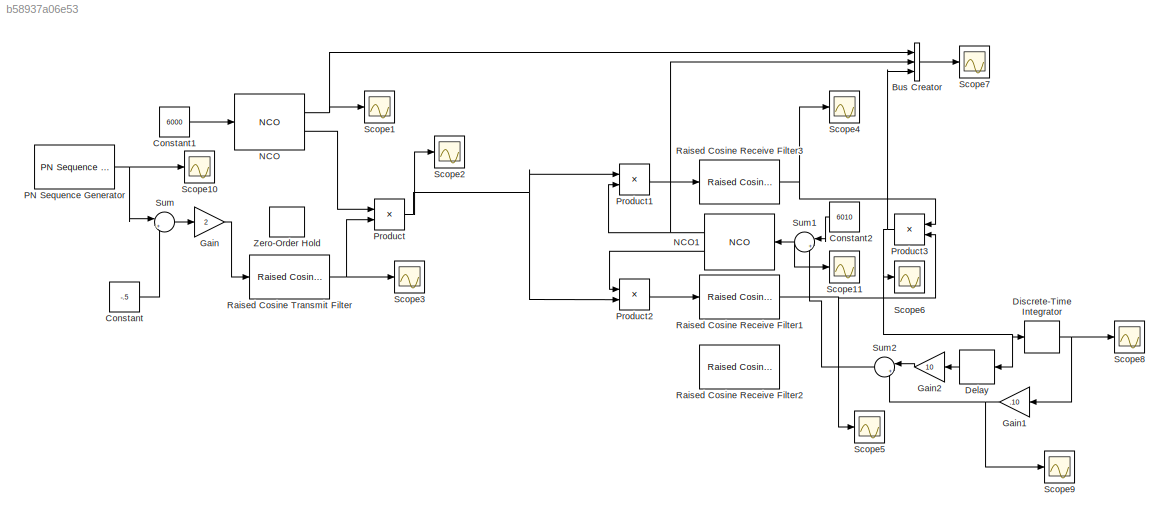
MODEL slx_b58937a06e53
KIND model
BLOCK [BusCreator] Bus Creator
  DisplayOption = bar
  Inputs = 3
  Ports = [3, 1]
BLOCK [Constant] Constant
  Value = -.5
BLOCK [Constant] Constant1
  OutDataTypeStr = int32
  Value = 6000
BLOCK [Constant] Constant2
  OutDataTypeStr = int32
  Value = 6010
BLOCK [Delay] Delay
  DelayLength = 1
  InputPortMap = u0
  Ports = [1, 1]
BLOCK [DiscreteIntegrator] Discrete-Time Integrator
  ICPrevOutput = DiscIntNeverNeededParam
  ICPrevScaledInput = DiscIntNeverNeededParam
  OutDataTypeStr = double
  Ports = [1, 1]
  SampleTime = -1
  gainval = 1
BLOCK [Gain] Gain
  Gain = 2
  OutDataTypeStr = Inherit: Inherit via internal rule
  ParamDataTypeStr = Inherit: Inherit via internal rule
  SaturateOnIntegerOverflow = off
BLOCK [Gain] Gain1
  Gain = .10
  OutDataTypeStr = int32
  ParamDataTypeStr = Inherit: Inherit via internal rule
  SaturateOnIntegerOverflow = off
BLOCK [Gain] Gain2
  Gain = 10
  OutDataTypeStr = int32
  ParamDataTypeStr = Inherit: Inherit via internal rule
  SaturateOnIntegerOverflow = off
BLOCK [Reference] NCO  REF=dspsigops/NCO
  AccInc = 100
  AccIncSrc = Input port
  AccumWL = 16
  CompMethod = Table lookup (no interpolation)
  DataType = double
  DitherWL = 4
  Formula = Sine and cosine
  HasDither = on
  HasOutputPhaseError = off
  HasPhaseQuantizer = on
  OutputFL = 14
  OutputWL = 16
  PNgeneratorLength = 19
  PhaseOffset = 0
  PhaseOffsetSrc = Specify via dialog
  Ports = [1, 2]
  SampleTime = 1
  SamplesPerFrame = 1
  SourceBlock = dspsigops/NCO
  SourceType = NCO
  TableDepth = 12
BLOCK [Reference] NCO1  REF=dspsigops/NCO
  AccInc = 100
  AccIncSrc = Input port
  AccumWL = 16
  CompMethod = Table lookup (no interpolation)
  DataType = double
  DitherWL = 4
  Formula = Sine and cosine
  HasDither = on
  HasOutputPhaseError = off
  HasPhaseQuantizer = on
  OutputFL = 14
  OutputWL = 16
  PNgeneratorLength = 19
  PhaseOffset = 0
  PhaseOffsetSrc = Specify via dialog
  Ports = [1, 2]
  SampleTime = 1
  SamplesPerFrame = 1
  SourceBlock = dspsigops/NCO
  SourceType = NCO
  TableDepth = 12
BLOCK [Reference] PN Sequence Generator  REF=commseqgen2/PN Sequence
Generator
  Ports = [0, 1]
  SourceBlock = commseqgen2/PN Sequence\nGenerator
  SourceType = PN Sequence Generator
  Ts = .1
  bitPackDataSigned = off
  bitPackedOutDType = double
  bitPackedOutputs = off
  frameBased = off
  ini_sta = [0 0 0 0 0 1]
  maxOutSize = [10 1]
  maxOutSizeMode = Dialog parameter
  numPackedBits = 8
  outBitMaskSource = Dialog parameter
  outDataType = double
  outVarSiz = off
  poly = [1 0 0 0 0 1 1]
  reset = off
  sampPerFrame = 1
  shift = 0
BLOCK [Product] Product
  InputSameDT = off
  OutDataTypeStr = Inherit: Inherit via internal rule
  Ports = [2, 1]
  SaturateOnIntegerOverflow = off
BLOCK [Product] Product1
  InputSameDT = off
  OutDataTypeStr = Inherit: Inherit via internal rule
  Ports = [2, 1]
  SaturateOnIntegerOverflow = off
BLOCK [Product] Product2
  InputSameDT = off
  OutDataTypeStr = Inherit: Inherit via internal rule
  Ports = [2, 1]
  SaturateOnIntegerOverflow = off
BLOCK [Product] Product3
  InputSameDT = off
  OutDataTypeStr = Inherit: Inherit via internal rule
  Ports = [2, 1]
  SaturateOnIntegerOverflow = off
BLOCK [Reference] Raised Cosine Receive Filter1  REF=commfilt2/Raised Cosine
Receive Filter
  D = 5
  InputProcessing = Elements as channels (sample based)
  LockScale = off
  N = 100
  Ports = [1, 1]
  R = 0.2
  SourceBlock = commfilt2/Raised Cosine\nReceive Filter
  SourceType = Raised Cosine Receive Filter
  UserDataPersistent = on
  accumFracLength = 30
  accumMode = Same as product output
  accumWordLength = 32
  checkCoeff = off
  checkGain = Normalized
  coeffFracLength = 15
  coeffMode = Same word length as input
  coeffWordLength = 16
  downFactor = 8
  downOffset = 0
  filtType = Square root
  filterGain = 1
  framing = Allow multirate processing
  launchFVT = off
  outputFracLength = 15
  outputMode = Same as accumulator
  outputWordLength = 16
  overflowMode = off
  prodOutputFracLength = 30
  prodOutputMode = Same as input
  prodOutputWordLength = 32
  rateMode = None
  roundingMode = Floor
  sampMode = Mute
  saveAsFlag = 0
  variableName = rcRxFilt1
BLOCK [Reference] Raised Cosine Receive Filter2  REF=commfilt2/Raised Cosine
Receive Filter
  D = 5
  InputProcessing = Elements as channels (sample based)
  LockScale = off
  N = 100
  Ports = [1, 1]
  R = 0.2
  SourceBlock = commfilt2/Raised Cosine\nReceive Filter
  SourceType = Raised Cosine Receive Filter
  UserDataPersistent = on
  accumFracLength = 30
  accumMode = Same as product output
  accumWordLength = 32
  checkCoeff = off
  checkGain = Normalized
  coeffFracLength = 15
  coeffMode = Same word length as input
  coeffWordLength = 16
  downFactor = 8
  downOffset = 0
  filtType = Square root
  filterGain = 1
  framing = Allow multirate processing
  launchFVT = off
  outputFracLength = 15
  outputMode = Same as accumulator
  outputWordLength = 16
  overflowMode = off
  prodOutputFracLength = 30
  prodOutputMode = Same as input
  prodOutputWordLength = 32
  rateMode = None
  roundingMode = Floor
  sampMode = Mute
  saveAsFlag = 0
  variableName = rcRxFilt2
BLOCK [Reference] Raised Cosine Receive Filter3  REF=commfilt2/Raised Cosine
Receive Filter
  D = 5
  InputProcessing = Elements as channels (sample based)
  LockScale = off
  N = 100
  Ports = [1, 1]
  R = 0.2
  SourceBlock = commfilt2/Raised Cosine\nReceive Filter
  SourceType = Raised Cosine Receive Filter
  UserDataPersistent = on
  accumFracLength = 30
  accumMode = Same as product output
  accumWordLength = 32
  checkCoeff = off
  checkGain = Normalized
  coeffFracLength = 15
  coeffMode = Same word length as input
  coeffWordLength = 16
  downFactor = 8
  downOffset = 0
  filtType = Square root
  filterGain = 1
  framing = Allow multirate processing
  launchFVT = off
  outputFracLength = 15
  outputMode = Same as accumulator
  outputWordLength = 16
  overflowMode = off
  prodOutputFracLength = 30
  prodOutputMode = Same as input
  prodOutputWordLength = 32
  rateMode = None
  roundingMode = Floor
  sampMode = Mute
  saveAsFlag = 0
  variableName = rcRxFilt3
BLOCK [Reference] Raised Cosine Transmit Filter  REF=commfilt2/Raised Cosine
Transmit Filter
  D = 5
  InputProcessing = Columns as channels (frame based)
  LockScale = off
  N = 100
  Ports = [1, 1]
  R = 0.2
  SourceBlock = commfilt2/Raised Cosine\nTransmit Filter
  SourceType = Raised Cosine Transmit Filter
  UserDataPersistent = on
  accumFracLength = 30
  accumMode = Inherit via internal rule
  accumWordLength = 32
  checkCoeff = off
  checkGain = Normalized
  coeffFracLength = 15
  coeffMode = Same word length as input
  coeffWordLength = 16
  filtType = Square root
  filterGain = 1
  framing = Allow multirate processing
  launchFVT = off
  outputFracLength = 15
  outputMode = Same as accumulator
  outputWordLength = 16
  overflowMode = off
  prodOutputFracLength = 30
  prodOutputMode = Inherit via internal rule
  prodOutputWordLength = 32
  roundingMode = Floor
  sampMode = Mute
  saveAsFlag = 0
  variableName = rcTxFilt
BLOCK [Scope] Scope1
  DataFormat = StructureWithTime
  Floating = off
  NumInputPorts = 1
  Ports = [1]
  SampleTime = 0
  SaveName = ScopeData1
  ShowLegends = off
BLOCK [Scope] Scope10
  DataFormat = StructureWithTime
  Floating = off
  NumInputPorts = 1
  Ports = [1]
  SampleTime = 0
  SaveName = ScopeData9
  ShowLegends = off
  YMax = 0.2
  YMin = -0.4
BLOCK [Scope] Scope11
  DataFormat = StructureWithTime
  Floating = off
  NumInputPorts = 1
  Ports = [1]
  SampleTime = 0
  SaveName = ScopeData10
  ShowLegends = off
  YMax = 5952.5
  YMin = 5920
BLOCK [Scope] Scope2
  DataFormat = StructureWithTime
  Floating = off
  NumInputPorts = 1
  Ports = [1]
  SampleTime = 0
  ShowLegends = off
  ZoomMode = xonly
BLOCK [Scope] Scope3
  DataFormat = StructureWithTime
  Floating = off
  NumInputPorts = 1
  Ports = [1]
  SampleTime = 0
  SaveName = ScopeData2
  ShowLegends = off
  YMax = 0.15
  YMin = -0.15
BLOCK [Scope] Scope4
  DataFormat = StructureWithTime
  Floating = off
  NumInputPorts = 1
  Ports = [1]
  SampleTime = 0
  SaveName = ScopeData3
  ShowLegends = off
  YMax = 0.3
  YMin = -0.25
BLOCK [Scope] Scope5
  DataFormat = StructureWithTime
  Floating = off
  NumInputPorts = 1
  Ports = [1]
  SampleTime = 0
  SaveName = ScopeData4
  ShowLegends = off
BLOCK [Scope] Scope6
  DataFormat = StructureWithTime
  Floating = off
  NumInputPorts = 1
  Ports = [1]
  SampleTime = 0
  SaveName = ScopeData5
  ShowLegends = off
BLOCK [Scope] Scope7
  DataFormat = StructureWithTime
  Floating = off
  NumInputPorts = 1
  Ports = [1]
  SampleTime = 0
  SaveName = ScopeData6
  ShowLegends = off
BLOCK [Scope] Scope8
  DataFormat = StructureWithTime
  Floating = off
  NumInputPorts = 1
  Ports = [1]
  SampleTime = 0
  SaveName = ScopeData7
  ShowLegends = off
BLOCK [Scope] Scope9
  DataFormat = StructureWithTime
  Floating = off
  NumInputPorts = 1
  Ports = [1]
  SampleTime = 0
  SaveName = ScopeData8
  ShowLegends = off
BLOCK [Sum] Sum
  IconShape = round
  InputSameDT = off
  Inputs = |++
  OutDataTypeStr = Inherit: Inherit via internal rule
  Ports = [2, 1]
  SaturateOnIntegerOverflow = off
BLOCK [Sum] Sum1
  IconShape = round
  InputSameDT = off
  Inputs = |+-
  OutDataTypeStr = Inherit: Inherit via internal rule
  Ports = [2, 1]
  SaturateOnIntegerOverflow = off
BLOCK [Sum] Sum2
  IconShape = round
  InputSameDT = off
  Inputs = |++
  OutDataTypeStr = Inherit: Inherit via internal rule
  Ports = [2, 1]
  SaturateOnIntegerOverflow = off
BLOCK [ZeroOrderHold] Zero-Order Hold
  SampleTime = .001
LINE Bus Creator:1 -> Scope7:1
LINE Constant1:1 -> NCO:1
LINE Constant2:1 -> Sum1:1
LINE Constant:1 -> Sum:2
LINE Delay:1 -> Gain2:1
NET Discrete-Time Integrator:1 -> Gain1:1, Scope8:1
NET Gain1:1 -> Scope9:1, Sum2:2
LINE Gain2:1 -> Sum2:1
LINE Gain:1 -> Raised Cosine Transmit Filter:1
NET NCO1:1 -> Bus Creator:2, Product1:2
LINE NCO1:2 -> Product2:1
NET NCO:1 -> Bus Creator:1, Scope1:1
LINE NCO:2 -> Product:1
NET PN Sequence Generator:1 -> Scope10:1, Sum:1
LINE Product1:1 -> Raised Cosine Receive Filter3:1
LINE Product2:1 -> Raised Cosine Receive Filter1:1
NET Product3:1 -> Bus Creator:3, Delay:1, Discrete-Time Integrator:1, Scope6:1
NET Product:1 -> Product1:1, Product2:2, Scope2:1
NET Raised Cosine Receive Filter1:1 -> Product3:2, Scope5:1
NET Raised Cosine Receive Filter3:1 -> Product3:1, Scope4:1
NET Raised Cosine Transmit Filter:1 -> Product:2, Scope3:1
NET Sum1:1 -> NCO1:1, Scope11:1
LINE Sum2:1 -> Sum1:2
LINE Sum:1 -> Gain:1
note: NET lines group one-source signal fan-out (src -> all destinations, sorted); 1:1 wires keep LINE
